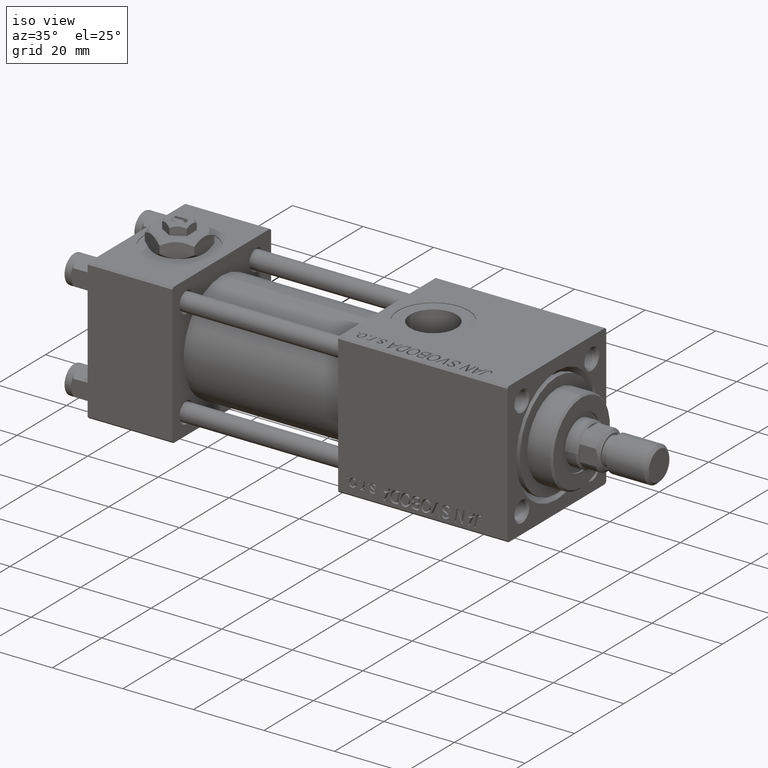
[diagram: clean part render]
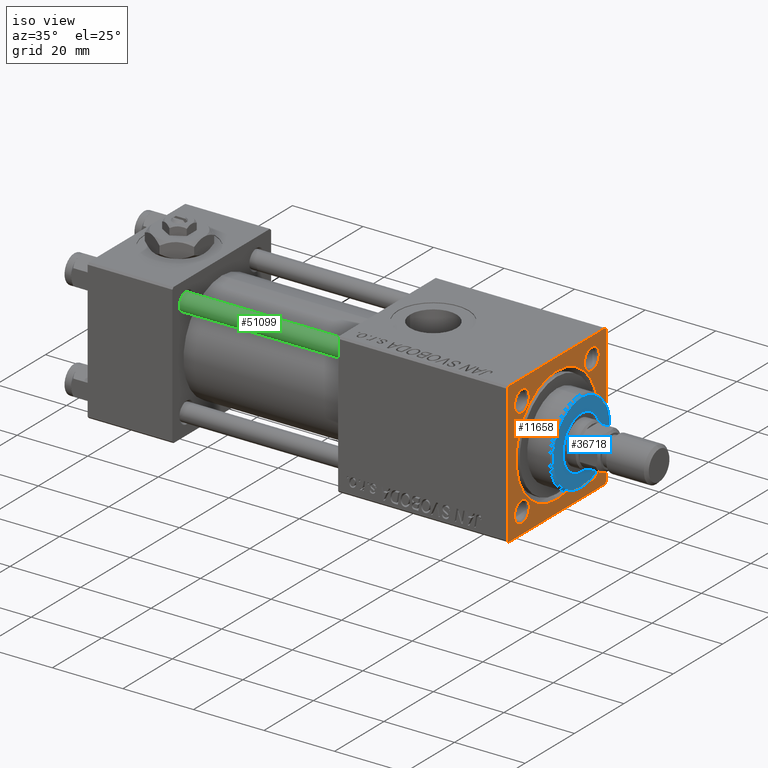
[diagram: same view with three faces highlighted in distinct colors, each labeled with its STEP entity id]
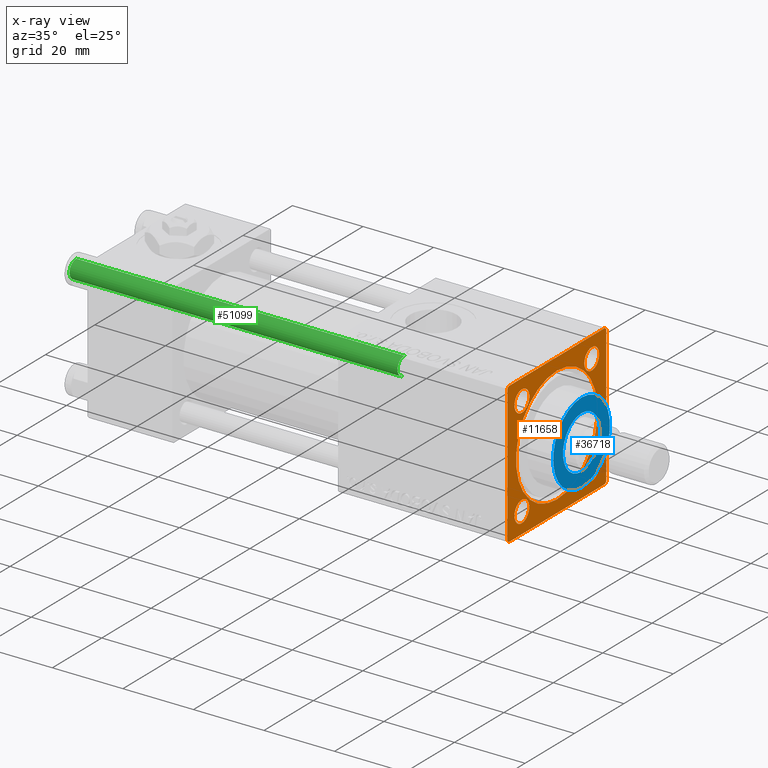
[diagram: x-ray of the same camera — body ghosted, the three highlighted faces saturated]
A machine part, iso view with three faces highlighted in distinct colors.
The next image is the same camera in x-ray (body ghosted, the three faces saturated) — at least one of them is partly hidden behind the body in this view.
Their STEP definitions:

[orange] entity #11658 — the highlighted planar face has unit normal (-1, 0, 0).
#92 = CARTESIAN_POINT ( 'NONE',  ( 119.0000000000000142, 0.000000000000000000, -16.50000000000001421 ) ) ;
#457 = CARTESIAN_POINT ( 'NONE',  ( 119.0000000000000142, 19.99999999999999645, 19.49999999999998579 ) ) ;
#466 = CARTESIAN_POINT ( 'NONE',  ( 119.0000000000000142, 14.14999999999999858, 11.14999999999996838 ) ) ;
#1201 = DIRECTION ( 'NONE',  ( 0.000000000000000000, 0.000000000000000000, 1.000000000000000000 ) ) ;
#1263 = CARTESIAN_POINT ( 'NONE',  ( 119.0000000000000142, -20.00000000000000355, 19.50000000000002487 ) ) ;
#1416 = AXIS2_PLACEMENT_3D ( 'NONE', #40624, #8950, #4193 ) ;
#1466 = EDGE_CURVE ( 'NONE', #32045, #11901, #40176, .T. ) ;
#1747 = DIRECTION ( 'NONE',  ( 0.000000000000000000, 0.000000000000000000, 1.000000000000000000 ) ) ;
#2039 = EDGE_CURVE ( 'NONE', #32585, #17406, #10644, .T. ) ;
#2649 = CARTESIAN_POINT ( 'NONE',  ( 119.0000000000000142, -14.14999999999999503, -17.15000000000003766 ) ) ;
#3318 = VECTOR ( 'NONE', #30834, 999.9999999999998863 ) ;
#3493 = DIRECTION ( 'NONE',  ( 0.000000000000000000, 0.000000000000000000, 1.000000000000000000 ) ) ;
#4100 = VERTEX_POINT ( 'NONE', #1263 ) ;
#4193 = DIRECTION ( 'NONE',  ( 0.000000000000000000, 0.000000000000000000, 1.000000000000000000 ) ) ;
#4971 = LINE ( 'NONE', #48150, #45623 ) ;
#5450 = VECTOR ( 'NONE', #10928, 1000.000000000000000 ) ;
#6253 = EDGE_CURVE ( 'NONE', #52204, #33847, #51459, .T. ) ;
#6439 = DIRECTION ( 'NONE',  ( -1.000000000000000000, -0.000000000000000000, -0.000000000000000000 ) ) ;
#6514 = FACE_BOUND ( 'NONE', #10475, .T. ) ;
#6625 = AXIS2_PLACEMENT_3D ( 'NONE', #17438, #50681, #26716 ) ;
#7232 = DIRECTION ( 'NONE',  ( -1.000000000000000000, -0.000000000000000000, -0.000000000000000000 ) ) ;
#8271 = EDGE_LOOP ( 'NONE', ( #15178, #32359 ) ) ;
#8534 = CARTESIAN_POINT ( 'NONE',  ( 119.0000000000000142, -20.00000000000000355, 19.50000000000002487 ) ) ;
#8546 = EDGE_CURVE ( 'NONE', #22279, #15812, #33698, .T. ) ;
#8950 = DIRECTION ( 'NONE',  ( -1.000000000000000000, -0.000000000000000000, -0.000000000000000000 ) ) ;
#9125 = ORIENTED_EDGE ( 'NONE', *, *, #39881, .T. ) ;
#9192 = EDGE_CURVE ( 'NONE', #29366, #42545, #49884, .T. ) ;
#9442 = EDGE_CURVE ( 'NONE', #21454, #32585, #4971, .T. ) ;
#9638 = VERTEX_POINT ( 'NONE', #43535 ) ;
#9689 = AXIS2_PLACEMENT_3D ( 'NONE', #41638, #26169, #1201 ) ;
#9832 = CARTESIAN_POINT ( 'NONE',  ( 119.0000000000000142, 19.99999999999999645, -19.50000000000000000 ) ) ;
#10258 = FACE_BOUND ( 'NONE', #13101, .T. ) ;
#10475 = EDGE_LOOP ( 'NONE', ( #47564, #17485 ) ) ;
#10644 = LINE ( 'NONE', #14617, #16600 ) ;
#10692 = CARTESIAN_POINT ( 'NONE',  ( 119.0000000000000142, -14.14999999999999503, -14.15000000000000391 ) ) ;
#10701 = CARTESIAN_POINT ( 'NONE',  ( 119.0000000000000142, 14.14999999999999858, -14.15000000000000036 ) ) ;
#10928 = DIRECTION ( 'NONE',  ( 0.000000000000000000, -1.000000000000000000, 0.000000000000000000 ) ) ;
#11084 = EDGE_LOOP ( 'NONE', ( #28451, #32787, #44640, #48110, #38414, #31562, #41305, #19802 ) ) ;
#11443 = CARTESIAN_POINT ( 'NONE',  ( 119.0000000000000142, 19.99999999999999645, -20.00000000000000000 ) ) ;
#11517 = AXIS2_PLACEMENT_3D ( 'NONE', #12890, #21379, #17919 ) ;
#11605 = ORIENTED_EDGE ( 'NONE', *, *, #6253, .T. ) ;
#11658 = ADVANCED_FACE ( 'NONE', ( #17962, #34188, #6514, #10258, #41916, #18212 ), #42699, .F. ) ;
#11901 = VERTEX_POINT ( 'NONE', #49582 ) ;
#12471 = VECTOR ( 'NONE', #17530, 1000.000000000000114 ) ;
#12890 = CARTESIAN_POINT ( 'NONE',  ( 119.0000000000000142, -14.14999999999999680, 14.15000000000000036 ) ) ;
#13101 = EDGE_LOOP ( 'NONE', ( #40832, #36729 ) ) ;
#13552 = CARTESIAN_POINT ( 'NONE',  ( 119.0000000000000142, -14.14999999999999503, -11.14999999999997371 ) ) ;
#13601 = CIRCLE ( 'NONE', #27178, 3.000000000000031974 ) ;
#13846 = CARTESIAN_POINT ( 'NONE',  ( 119.0000000000000142, 19.49999999999996803, 20.00000000000000000 ) ) ;
#14617 = CARTESIAN_POINT ( 'NONE',  ( 119.0000000000000142, 19.99999999999999645, 20.00000000000000000 ) ) ;
#15178 = ORIENTED_EDGE ( 'NONE', *, *, #8546, .T. ) ;
#15708 = DIRECTION ( 'NONE',  ( -1.000000000000000000, -0.000000000000000000, -0.000000000000000000 ) ) ;
#15812 = VERTEX_POINT ( 'NONE', #35557 ) ;
#16600 = VECTOR ( 'NONE', #23112, 1000.000000000000000 ) ;
#16987 = EDGE_CURVE ( 'NONE', #9638, #11901, #51335, .T. ) ;
#17406 = VERTEX_POINT ( 'NONE', #28643 ) ;
#17438 = CARTESIAN_POINT ( 'NONE',  ( 119.0000000000000142, 0.000000000000000000, 0.000000000000000000 ) ) ;
#17485 = ORIENTED_EDGE ( 'NONE', *, *, #31875, .T. ) ;
#17508 = DIRECTION ( 'NONE',  ( 0.000000000000000000, 0.000000000000000000, -1.000000000000000000 ) ) ;
#17530 = DIRECTION ( 'NONE',  ( -0.000000000000000000, 0.7071067811865474617, 0.7071067811865474617 ) ) ;
#17730 = EDGE_CURVE ( 'NONE', #15812, #22279, #28823, .T. ) ;
#17777 = AXIS2_PLACEMENT_3D ( 'NONE', #24043, #44814, #39764 ) ;
#17919 = DIRECTION ( 'NONE',  ( 0.000000000000000000, 0.000000000000000000, 1.000000000000000000 ) ) ;
#17962 = FACE_BOUND ( 'NONE', #8271, .T. ) ;
#18212 = FACE_OUTER_BOUND ( 'NONE', #11084, .T. ) ;
#18613 = CARTESIAN_POINT ( 'NONE',  ( 119.0000000000000142, -19.50000000000002487, -20.00000000000000000 ) ) ;
#19422 = DIRECTION ( 'NONE',  ( 0.000000000000000000, 0.000000000000000000, 1.000000000000000000 ) ) ;
#19571 = LINE ( 'NONE', #27544, #21700 ) ;
#19802 = ORIENTED_EDGE ( 'NONE', *, *, #38986, .T. ) ;
#20748 = DIRECTION ( 'NONE',  ( -1.000000000000000000, -0.000000000000000000, -0.000000000000000000 ) ) ;
#21379 = DIRECTION ( 'NONE',  ( -1.000000000000000000, -0.000000000000000000, -0.000000000000000000 ) ) ;
#21454 = VERTEX_POINT ( 'NONE', #457 ) ;
#21515 = LINE ( 'NONE', #9832, #12471 ) ;
#21700 = VECTOR ( 'NONE', #28603, 1000.000000000000000 ) ;
#22076 = CARTESIAN_POINT ( 'NONE',  ( 119.0000000000000142, 14.14999999999999858, -11.14999999999997016 ) ) ;
#22279 = VERTEX_POINT ( 'NONE', #466 ) ;
#22442 = EDGE_LOOP ( 'NONE', ( #9125, #25256 ) ) ;
#23112 = DIRECTION ( 'NONE',  ( 0.000000000000000000, -1.000000000000000000, -8.673617379884035472E-17 ) ) ;
#23170 = DIRECTION ( 'NONE',  ( 0.000000000000000000, 0.000000000000000000, 1.000000000000000000 ) ) ;
#24043 = CARTESIAN_POINT ( 'NONE',  ( 119.0000000000000142, 14.14999999999999858, 14.15000000000000036 ) ) ;
#24331 = CIRCLE ( 'NONE', #1416, 16.50000000000001421 ) ;
#24745 = EDGE_CURVE ( 'NONE', #33847, #52204, #13601, .T. ) ;
#25256 = ORIENTED_EDGE ( 'NONE', *, *, #47343, .T. ) ;
#26169 = DIRECTION ( 'NONE',  ( -1.000000000000000000, -0.000000000000000000, -0.000000000000000000 ) ) ;
#26296 = EDGE_CURVE ( 'NONE', #21454, #27358, #41734, .T. ) ;
#26716 = DIRECTION ( 'NONE',  ( -0.000000000000000000, 0.000000000000000000, 1.000000000000000000 ) ) ;
#26876 = DIRECTION ( 'NONE',  ( -1.000000000000000000, -0.000000000000000000, -0.000000000000000000 ) ) ;
#27178 = AXIS2_PLACEMENT_3D ( 'NONE', #27432, #15708, #1747 ) ;
#27358 = VERTEX_POINT ( 'NONE', #30813 ) ;
#27432 = CARTESIAN_POINT ( 'NONE',  ( 119.0000000000000142, -14.14999999999999680, 14.15000000000000036 ) ) ;
#27544 = CARTESIAN_POINT ( 'NONE',  ( 119.0000000000000142, -20.00000000000000355, 19.99999999999999645 ) ) ;
#27940 = CARTESIAN_POINT ( 'NONE',  ( 119.0000000000000142, 0.000000000000000000, 0.000000000000000000 ) ) ;
#28234 = CARTESIAN_POINT ( 'NONE',  ( 119.0000000000000142, 14.14999999999999858, -17.15000000000003411 ) ) ;
#28451 = ORIENTED_EDGE ( 'NONE', *, *, #40299, .T. ) ;
#28603 = DIRECTION ( 'NONE',  ( 0.000000000000000000, 8.673617379884036705E-17, -1.000000000000000000 ) ) ;
#28643 = CARTESIAN_POINT ( 'NONE',  ( 119.0000000000000142, -19.50000000000001776, 19.99999999999999645 ) ) ;
#28823 = CIRCLE ( 'NONE', #17777, 3.000000000000031974 ) ;
#29366 = VERTEX_POINT ( 'NONE', #22076 ) ;
#30027 = CIRCLE ( 'NONE', #9689, 3.000000000000031974 ) ;
#30159 = AXIS2_PLACEMENT_3D ( 'NONE', #27940, #20748, #3493 ) ;
#30291 = VERTEX_POINT ( 'NONE', #13552 ) ;
#30357 = CARTESIAN_POINT ( 'NONE',  ( 119.0000000000000142, 19.49999999999999645, -20.00000000000000000 ) ) ;
#30790 = CARTESIAN_POINT ( 'NONE',  ( 119.0000000000000142, -14.14999999999999680, 11.14999999999996838 ) ) ;
#30813 = CARTESIAN_POINT ( 'NONE',  ( 119.0000000000000142, 19.99999999999999645, -19.50000000000000000 ) ) ;
#30834 = DIRECTION ( 'NONE',  ( 0.000000000000000000, 0.7071067811865376918, -0.7071067811865574537 ) ) ;
#31150 = DIRECTION ( 'NONE',  ( 0.000000000000000000, 0.000000000000000000, 1.000000000000000000 ) ) ;
#31562 = ORIENTED_EDGE ( 'NONE', *, *, #9442, .T. ) ;
#31875 = EDGE_CURVE ( 'NONE', #30291, #41072, #30027, .T. ) ;
#32045 = VERTEX_POINT ( 'NONE', #30357 ) ;
#32359 = ORIENTED_EDGE ( 'NONE', *, *, #17730, .T. ) ;
#32585 = VERTEX_POINT ( 'NONE', #13846 ) ;
#32787 = ORIENTED_EDGE ( 'NONE', *, *, #16987, .T. ) ;
#32859 = AXIS2_PLACEMENT_3D ( 'NONE', #37479, #37219, #40937 ) ;
#33698 = CIRCLE ( 'NONE', #32859, 3.000000000000031974 ) ;
#33847 = VERTEX_POINT ( 'NONE', #30790 ) ;
#34188 = FACE_BOUND ( 'NONE', #51048, .T. ) ;
#34462 = AXIS2_PLACEMENT_3D ( 'NONE', #10692, #6439, #31150 ) ;
#34608 = VERTEX_POINT ( 'NONE', #52092 ) ;
#35557 = CARTESIAN_POINT ( 'NONE',  ( 119.0000000000000142, 14.14999999999999858, 17.15000000000003411 ) ) ;
#35662 = DIRECTION ( 'NONE',  ( -0.000000000000000000, -0.7071067811865573427, -0.7071067811865376918 ) ) ;
#36729 = ORIENTED_EDGE ( 'NONE', *, *, #9192, .T. ) ;
#37219 = DIRECTION ( 'NONE',  ( -1.000000000000000000, -0.000000000000000000, -0.000000000000000000 ) ) ;
#37479 = CARTESIAN_POINT ( 'NONE',  ( 119.0000000000000142, 14.14999999999999858, 14.15000000000000036 ) ) ;
#38001 = CARTESIAN_POINT ( 'NONE',  ( 119.0000000000000142, 19.99999999999999645, 20.00000000000000000 ) ) ;
#38414 = ORIENTED_EDGE ( 'NONE', *, *, #26296, .F. ) ;
#38621 = ORIENTED_EDGE ( 'NONE', *, *, #24745, .T. ) ;
#38641 = AXIS2_PLACEMENT_3D ( 'NONE', #38866, #26876, #19422 ) ;
#38866 = CARTESIAN_POINT ( 'NONE',  ( 119.0000000000000142, 14.14999999999999858, -14.15000000000000036 ) ) ;
#38909 = EDGE_CURVE ( 'NONE', #42545, #29366, #42075, .T. ) ;
#38986 = EDGE_CURVE ( 'NONE', #17406, #4100, #51360, .T. ) ;
#39764 = DIRECTION ( 'NONE',  ( 0.000000000000000000, 0.000000000000000000, 1.000000000000000000 ) ) ;
#39881 = EDGE_CURVE ( 'NONE', #51149, #34608, #40402, .T. ) ;
#40176 = LINE ( 'NONE', #11443, #5450 ) ;
#40299 = EDGE_CURVE ( 'NONE', #4100, #9638, #19571, .T. ) ;
#40402 = CIRCLE ( 'NONE', #30159, 16.50000000000001421 ) ;
#40624 = CARTESIAN_POINT ( 'NONE',  ( 119.0000000000000142, 0.000000000000000000, 0.000000000000000000 ) ) ;
#40832 = ORIENTED_EDGE ( 'NONE', *, *, #38909, .T. ) ;
#40937 = DIRECTION ( 'NONE',  ( 0.000000000000000000, 0.000000000000000000, 1.000000000000000000 ) ) ;
#41072 = VERTEX_POINT ( 'NONE', #2649 ) ;
#41305 = ORIENTED_EDGE ( 'NONE', *, *, #2039, .T. ) ;
#41515 = EDGE_CURVE ( 'NONE', #41072, #30291, #51482, .T. ) ;
#41638 = CARTESIAN_POINT ( 'NONE',  ( 119.0000000000000142, -14.14999999999999503, -14.15000000000000391 ) ) ;
#41734 = LINE ( 'NONE', #38001, #44290 ) ;
#41916 = FACE_BOUND ( 'NONE', #22442, .T. ) ;
#42075 = CIRCLE ( 'NONE', #38641, 3.000000000000031974 ) ;
#42545 = VERTEX_POINT ( 'NONE', #28234 ) ;
#42699 = PLANE ( 'NONE',  #6625 ) ;
#43535 = CARTESIAN_POINT ( 'NONE',  ( 119.0000000000000142, -20.00000000000000000, -19.50000000000001066 ) ) ;
#44290 = VECTOR ( 'NONE', #17508, 1000.000000000000000 ) ;
#44640 = ORIENTED_EDGE ( 'NONE', *, *, #1466, .F. ) ;
#44814 = DIRECTION ( 'NONE',  ( -1.000000000000000000, -0.000000000000000000, -0.000000000000000000 ) ) ;
#45623 = VECTOR ( 'NONE', #52129, 999.9999999999998863 ) ;
#47343 = EDGE_CURVE ( 'NONE', #34608, #51149, #24331, .T. ) ;
#47564 = ORIENTED_EDGE ( 'NONE', *, *, #41515, .T. ) ;
#48110 = ORIENTED_EDGE ( 'NONE', *, *, #50394, .T. ) ;
#48150 = CARTESIAN_POINT ( 'NONE',  ( 119.0000000000000142, 19.49999999999996803, 20.00000000000000000 ) ) ;
#48520 = CARTESIAN_POINT ( 'NONE',  ( 119.0000000000000142, -14.14999999999999680, 17.15000000000003411 ) ) ;
#49582 = CARTESIAN_POINT ( 'NONE',  ( 119.0000000000000142, -19.50000000000002487, -20.00000000000000000 ) ) ;
#49884 = CIRCLE ( 'NONE', #52427, 3.000000000000031974 ) ;
#50394 = EDGE_CURVE ( 'NONE', #32045, #27358, #21515, .T. ) ;
#50681 = DIRECTION ( 'NONE',  ( -1.000000000000000000, 0.000000000000000000, -0.000000000000000000 ) ) ;
#51048 = EDGE_LOOP ( 'NONE', ( #38621, #11605 ) ) ;
#51149 = VERTEX_POINT ( 'NONE', #92 ) ;
#51335 = LINE ( 'NONE', #18613, #3318 ) ;
#51360 = LINE ( 'NONE', #8534, #52240 ) ;
#51459 = CIRCLE ( 'NONE', #11517, 3.000000000000031974 ) ;
#51482 = CIRCLE ( 'NONE', #34462, 3.000000000000031974 ) ;
#52092 = CARTESIAN_POINT ( 'NONE',  ( 119.0000000000000142, 2.020667218593134678E-15, 16.50000000000001421 ) ) ;
#52129 = DIRECTION ( 'NONE',  ( 0.000000000000000000, -0.7071067811865574537, 0.7071067811865376918 ) ) ;
#52204 = VERTEX_POINT ( 'NONE', #48520 ) ;
#52240 = VECTOR ( 'NONE', #35662, 1000.000000000000114 ) ;
#52427 = AXIS2_PLACEMENT_3D ( 'NONE', #10701, #7232, #23170 ) ;

[blue] entity #36718 — the highlighted planar face has unit normal (1, 0, 0).
#129 = DIRECTION ( 'NONE',  ( 1.000000000000000000, 0.000000000000000000, 0.000000000000000000 ) ) ;
#551 = VERTEX_POINT ( 'NONE', #4458 ) ;
#967 = AXIS2_PLACEMENT_3D ( 'NONE', #7839, #23509, #129 ) ;
#1491 = PLANE ( 'NONE',  #23238 ) ;
#1740 = DIRECTION ( 'NONE',  ( 1.000000000000000000, 0.000000000000000000, 0.000000000000000000 ) ) ;
#1754 = DIRECTION ( 'NONE',  ( 1.000000000000000000, 0.000000000000000000, -0.000000000000000000 ) ) ;
#2254 = DIRECTION ( 'NONE',  ( 0.000000000000000000, 0.000000000000000000, 1.000000000000000000 ) ) ;
#2264 = CARTESIAN_POINT ( 'NONE',  ( 0.000000000000000000, 0.000000000000000000, 35.70000000000000284 ) ) ;
#2509 = ORIENTED_EDGE ( 'NONE', *, *, #23039, .T. ) ;
#4349 = CIRCLE ( 'NONE', #967, 7.500000000000000888 ) ;
#4458 = CARTESIAN_POINT ( 'NONE',  ( 11.49999999999999645, 1.438959988998139963E-15, 35.70000000000000284 ) ) ;
#4889 = DIRECTION ( 'NONE',  ( 1.000000000000000000, 0.000000000000000000, 0.000000000000000000 ) ) ;
#7839 = CARTESIAN_POINT ( 'NONE',  ( 0.000000000000000000, 0.000000000000000000, 35.70000000000000284 ) ) ;
#9726 = FACE_OUTER_BOUND ( 'NONE', #46411, .T. ) ;
#11582 = AXIS2_PLACEMENT_3D ( 'NONE', #38685, #2254, #1740 ) ;
#11693 = EDGE_LOOP ( 'NONE', ( #46615, #46332 ) ) ;
#15259 = VERTEX_POINT ( 'NONE', #47689 ) ;
#15620 = CARTESIAN_POINT ( 'NONE',  ( 7.500000000000000888, 0.000000000000000000, 35.70000000000000284 ) ) ;
#16674 = DIRECTION ( 'NONE',  ( 0.000000000000000000, 0.000000000000000000, 1.000000000000000000 ) ) ;
#16980 = CIRCLE ( 'NONE', #24612, 11.49999999999999645 ) ;
#17917 = CIRCLE ( 'NONE', #35775, 11.49999999999999645 ) ;
#18206 = FACE_BOUND ( 'NONE', #11693, .T. ) ;
#18720 = ORIENTED_EDGE ( 'NONE', *, *, #26061, .T. ) ;
#20042 = CIRCLE ( 'NONE', #11582, 7.500000000000000888 ) ;
#23039 = EDGE_CURVE ( 'NONE', #15259, #551, #16980, .T. ) ;
#23238 = AXIS2_PLACEMENT_3D ( 'NONE', #2264, #45910, #1754 ) ;
#23509 = DIRECTION ( 'NONE',  ( 0.000000000000000000, 0.000000000000000000, 1.000000000000000000 ) ) ;
#24612 = AXIS2_PLACEMENT_3D ( 'NONE', #24667, #16674, #44902 ) ;
#24667 = CARTESIAN_POINT ( 'NONE',  ( 0.000000000000000000, 0.000000000000000000, 35.70000000000000284 ) ) ;
#26061 = EDGE_CURVE ( 'NONE', #551, #15259, #17917, .T. ) ;
#26644 = EDGE_CURVE ( 'NONE', #50730, #29108, #4349, .T. ) ;
#29082 = CARTESIAN_POINT ( 'NONE',  ( 0.000000000000000000, 0.000000000000000000, 35.70000000000000284 ) ) ;
#29108 = VERTEX_POINT ( 'NONE', #49057 ) ;
#29333 = DIRECTION ( 'NONE',  ( 0.000000000000000000, 0.000000000000000000, 1.000000000000000000 ) ) ;
#35775 = AXIS2_PLACEMENT_3D ( 'NONE', #29082, #29333, #4889 ) ;
#36718 = ADVANCED_FACE ( 'NONE', ( #18206, #9726 ), #1491, .T. ) ;
#38685 = CARTESIAN_POINT ( 'NONE',  ( 0.000000000000000000, 0.000000000000000000, 35.70000000000000284 ) ) ;
#44902 = DIRECTION ( 'NONE',  ( 1.000000000000000000, 0.000000000000000000, 0.000000000000000000 ) ) ;
#45910 = DIRECTION ( 'NONE',  ( 0.000000000000000000, 0.000000000000000000, 1.000000000000000000 ) ) ;
#46124 = EDGE_CURVE ( 'NONE', #29108, #50730, #20042, .T. ) ;
#46332 = ORIENTED_EDGE ( 'NONE', *, *, #46124, .F. ) ;
#46411 = EDGE_LOOP ( 'NONE', ( #2509, #18720 ) ) ;
#46615 = ORIENTED_EDGE ( 'NONE', *, *, #26644, .F. ) ;
#47689 = CARTESIAN_POINT ( 'NONE',  ( -11.49999999999999645, 0.000000000000000000, 35.70000000000000284 ) ) ;
#49057 = CARTESIAN_POINT ( 'NONE',  ( -7.500000000000000888, 9.184850993605149917E-16, 35.70000000000000284 ) ) ;
#50730 = VERTEX_POINT ( 'NONE', #15620 ) ;

[green] entity #51099 — the highlighted cylindrical surface (edge-blend (fillet) strip) has radius 2.5 mm, axis along (1, 0, -0).
#1310 = DIRECTION ( 'NONE',  ( -0.000000000000000000, -0.000000000000000000, -1.000000000000000000 ) ) ;
#3563 = CARTESIAN_POINT ( 'NONE',  ( -2.500000000000000000, 0.000000000000000000, 0.5000000000000004441 ) ) ;
#4514 = LINE ( 'NONE', #45996, #49244 ) ;
#5830 = AXIS2_PLACEMENT_3D ( 'NONE', #7626, #40079, #12142 ) ;
#7096 = CARTESIAN_POINT ( 'NONE',  ( 2.500000000000000000, 3.061616997868383141E-16, 93.50000000000001421 ) ) ;
#7447 = VECTOR ( 'NONE', #25239, 1000.000000000000000 ) ;
#7626 = CARTESIAN_POINT ( 'NONE',  ( 0.000000000000000000, 0.000000000000000000, 0.5000000000000004441 ) ) ;
#12142 = DIRECTION ( 'NONE',  ( 1.000000000000000000, 0.000000000000000000, 0.000000000000000000 ) ) ;
#12548 = CIRCLE ( 'NONE', #16785, 2.500000000000000000 ) ;
#13675 = ORIENTED_EDGE ( 'NONE', *, *, #49614, .F. ) ;
#14451 = CARTESIAN_POINT ( 'NONE',  ( 0.000000000000000000, 0.000000000000000000, 94.00000000000000000 ) ) ;
#15722 = EDGE_CURVE ( 'NONE', #22363, #45297, #22772, .T. ) ;
#15802 = EDGE_LOOP ( 'NONE', ( #31852, #18586, #50641, #13675 ) ) ;
#16785 = AXIS2_PLACEMENT_3D ( 'NONE', #52051, #23831, #23038 ) ;
#18586 = ORIENTED_EDGE ( 'NONE', *, *, #22087, .T. ) ;
#21505 = LINE ( 'NONE', #38014, #7447 ) ;
#21912 = DIRECTION ( 'NONE',  ( -1.000000000000000000, 0.000000000000000000, 0.000000000000000000 ) ) ;
#22087 = EDGE_CURVE ( 'NONE', #36554, #22363, #4514, .T. ) ;
#22363 = VERTEX_POINT ( 'NONE', #37431 ) ;
#22772 = CIRCLE ( 'NONE', #5830, 2.500000000000000000 ) ;
#23038 = DIRECTION ( 'NONE',  ( 1.000000000000000000, 0.000000000000000000, 0.000000000000000000 ) ) ;
#23831 = DIRECTION ( 'NONE',  ( 0.000000000000000000, 0.000000000000000000, -1.000000000000000000 ) ) ;
#23938 = CARTESIAN_POINT ( 'NONE',  ( -2.500000000000000000, 0.000000000000000000, 93.50000000000001421 ) ) ;
#25239 = DIRECTION ( 'NONE',  ( -0.000000000000000000, -0.000000000000000000, -1.000000000000000000 ) ) ;
#30925 = DIRECTION ( 'NONE',  ( -0.000000000000000000, -0.000000000000000000, -1.000000000000000000 ) ) ;
#31852 = ORIENTED_EDGE ( 'NONE', *, *, #49283, .T. ) ;
#36554 = VERTEX_POINT ( 'NONE', #7096 ) ;
#37431 = CARTESIAN_POINT ( 'NONE',  ( 2.500000000000000000, 3.061616997868383141E-16, 0.5000000000000004441 ) ) ;
#38014 = CARTESIAN_POINT ( 'NONE',  ( -2.500000000000000000, 0.000000000000000000, 94.00000000000000000 ) ) ;
#39199 = CYLINDRICAL_SURFACE ( 'NONE', #48161, 2.500000000000000000 ) ;
#39934 = VERTEX_POINT ( 'NONE', #23938 ) ;
#40079 = DIRECTION ( 'NONE',  ( -0.000000000000000000, -0.000000000000000000, 1.000000000000000000 ) ) ;
#45297 = VERTEX_POINT ( 'NONE', #3563 ) ;
#45996 = CARTESIAN_POINT ( 'NONE',  ( 2.500000000000000000, 3.061616997868383141E-16, 94.00000000000000000 ) ) ;
#48161 = AXIS2_PLACEMENT_3D ( 'NONE', #14451, #30925, #21912 ) ;
#49244 = VECTOR ( 'NONE', #1310, 1000.000000000000000 ) ;
#49283 = EDGE_CURVE ( 'NONE', #39934, #36554, #12548, .T. ) ;
#49614 = EDGE_CURVE ( 'NONE', #39934, #45297, #21505, .T. ) ;
#50641 = ORIENTED_EDGE ( 'NONE', *, *, #15722, .T. ) ;
#50915 = FACE_OUTER_BOUND ( 'NONE', #15802, .T. ) ;
#51099 = ADVANCED_FACE ( 'NONE', ( #50915 ), #39199, .T. ) ;
#52051 = CARTESIAN_POINT ( 'NONE',  ( 0.000000000000000000, 0.000000000000000000, 93.50000000000001421 ) ) ;